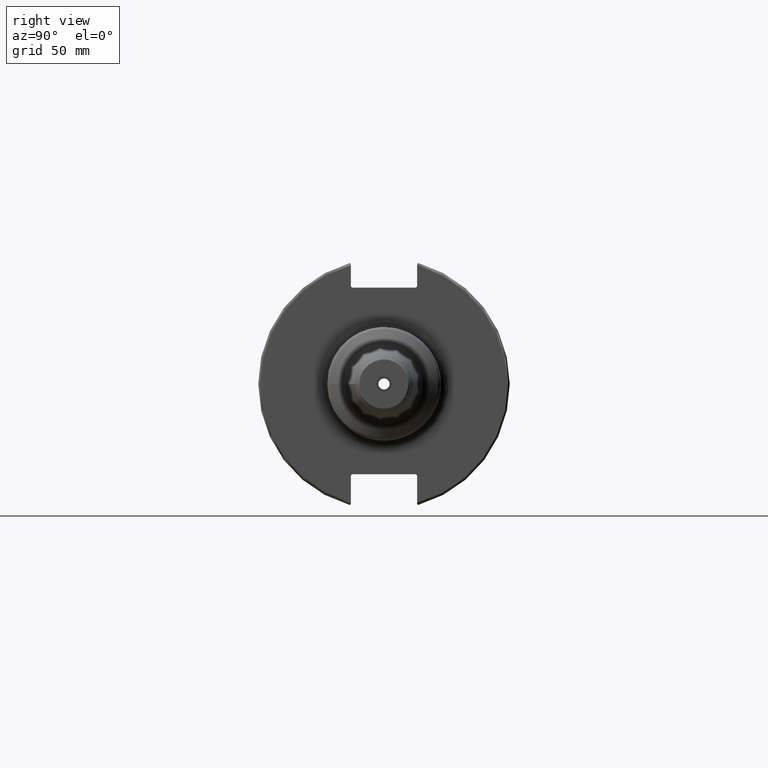
[diagram: clean part render]
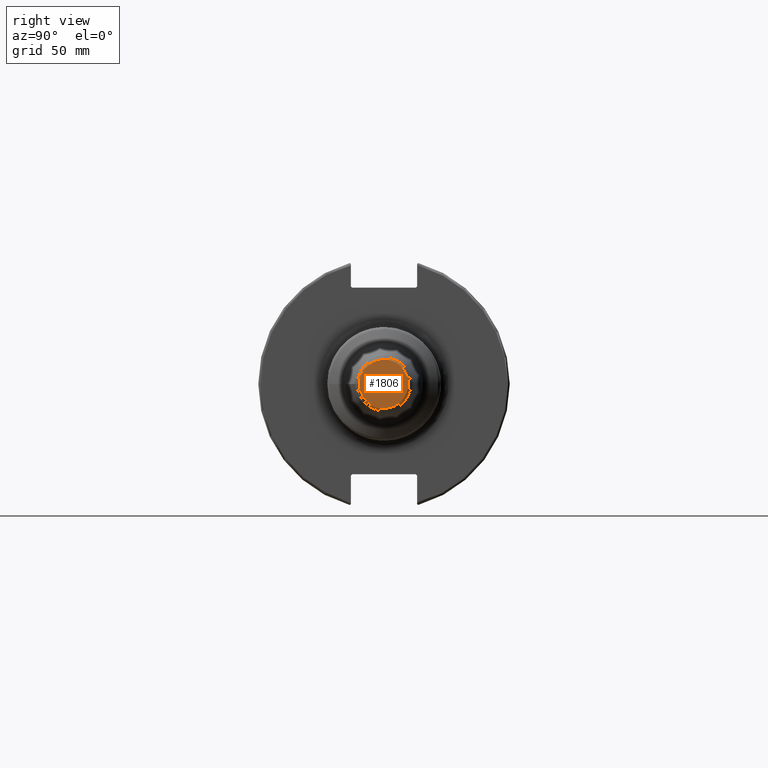
[diagram: same view with one face highlighted and labeled with its STEP entity id]
A machine part, right view. The second image highlights one B-rep face of the part: STEP entity #1806.
In plain terms, the highlighted planar face has unit normal (1, 0, 0).
Its self-contained STEP definition (entity closure, byte-faithful):
#95=FACE_BOUND('',#502,.T.);
#115=PLANE('',#1959);
#394=FACE_OUTER_BOUND('',#501,.T.);
#501=EDGE_LOOP('',(#1272));
#502=EDGE_LOOP('',(#1273));
#635=CIRCLE('',#1952,9.52551771664256);
#641=CIRCLE('',#1960,3.17499999999997);
#766=VERTEX_POINT('',#2792);
#771=VERTEX_POINT('',#2806);
#961=EDGE_CURVE('',#766,#766,#635,.T.);
#968=EDGE_CURVE('',#771,#771,#641,.T.);
#1272=ORIENTED_EDGE('',*,*,#961,.F.);
#1273=ORIENTED_EDGE('',*,*,#968,.F.);
#1806=ADVANCED_FACE('',(#394,#95),#115,.T.);
#1952=AXIS2_PLACEMENT_3D('',#2793,#2225,#2226);
#1959=AXIS2_PLACEMENT_3D('',#2805,#2240,#2241);
#1960=AXIS2_PLACEMENT_3D('',#2807,#2242,#2243);
#2225=DIRECTION('center_axis',(-1.,0.,0.));
#2226=DIRECTION('ref_axis',(0.,-1.,1.83697019872103E-16));
#2240=DIRECTION('center_axis',(1.,0.,0.));
#2241=DIRECTION('ref_axis',(0.,0.,-1.));
#2242=DIRECTION('center_axis',(1.,0.,0.));
#2243=DIRECTION('ref_axis',(0.,0.,-1.));
#2792=CARTESIAN_POINT('',(150.,-1.16653947819077E-15,9.52551771664256));
#2793=CARTESIAN_POINT('Origin',(150.,0.,0.));
#2805=CARTESIAN_POINT('Origin',(150.,3.17499999999997,0.));
#2806=CARTESIAN_POINT('',(150.,-3.17499999999997,-3.88825358729281E-16));
#2807=CARTESIAN_POINT('Origin',(150.,0.,0.));